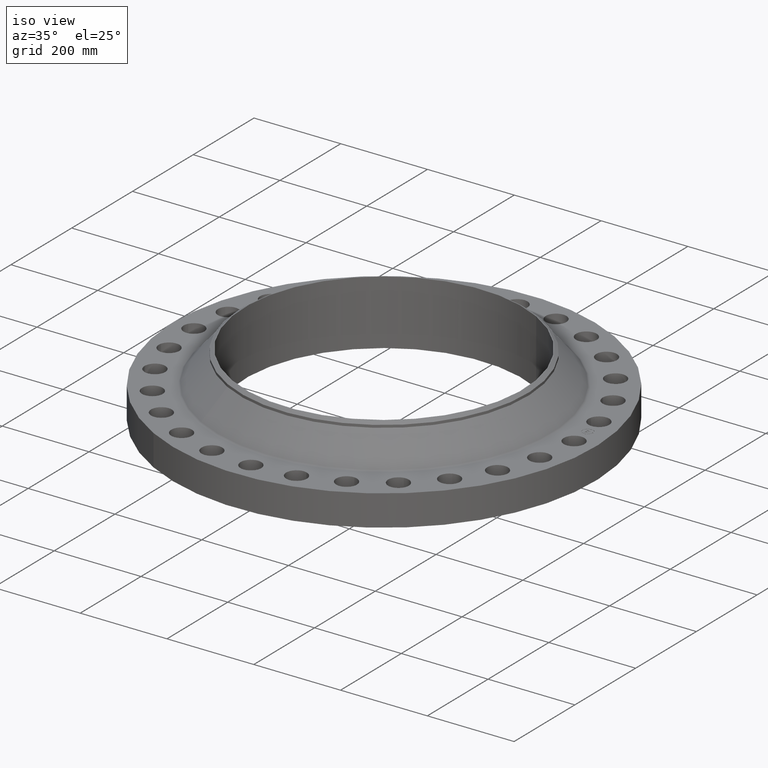
[diagram: clean part render]
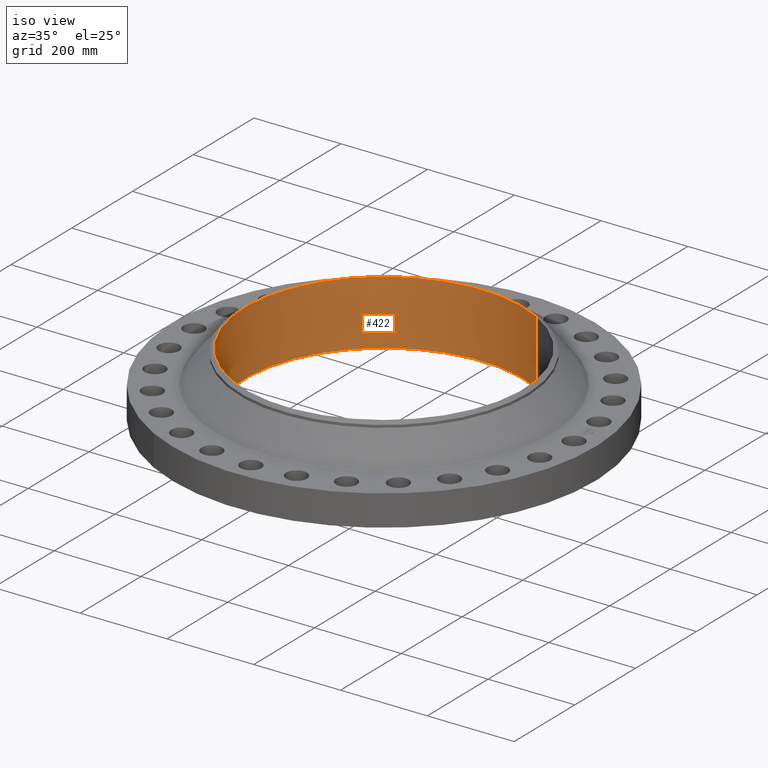
[diagram: same view with one face highlighted and labeled with its STEP entity id]
A machine part, iso view. The second image highlights one B-rep face of the part: STEP entity #422.
In plain terms, the highlighted cylindrical surface (partial cylindrical patch) has radius 320.675 mm, axis along (0, 0, -1).
Its self-contained STEP definition (entity closure, byte-faithful):
#361=CARTESIAN_POINT('Axis2P3D Location',(-2.84217094304E-014,2.13162820728E-014,147.574000001)) ;
#365=CARTESIAN_POINT('Vertex',(-153.739784593,-281.418788035,147.574000001)) ;
#367=CARTESIAN_POINT('Vertex',(153.739784593,281.418788035,147.574000001)) ;
#380=CARTESIAN_POINT('Axis2P3D Location',(0.,0.,74.2632500003)) ;
#385=CARTESIAN_POINT('Line Origine',(153.739784593,281.418788035,74.2632500003)) ;
#389=CARTESIAN_POINT('Vertex',(153.739784593,281.418788035,-1.58750000001)) ;
#396=CARTESIAN_POINT('Vertex',(-153.739784593,-281.418788035,-1.58750000001)) ;
#399=CARTESIAN_POINT('Line Origine',(-153.739784593,-281.418788035,74.2632500003)) ;
#411=CARTESIAN_POINT('Axis2P3D Location',(0.,0.,-1.58750000001)) ;
#362=DIRECTION('Axis2P3D Direction',(0.,-0.,-1.)) ;
#381=DIRECTION('Axis2P3D Direction',(0.,0.,-1.)) ;
#382=DIRECTION('Axis2P3D XDirection',(0.479425538604,0.87758256189,0.)) ;
#386=DIRECTION('Vector Direction',(0.,0.,-1.)) ;
#400=DIRECTION('Vector Direction',(0.,0.,-1.)) ;
#412=DIRECTION('Axis2P3D Direction',(0.,0.,-1.)) ;
#363=AXIS2_PLACEMENT_3D('Circle Axis2P3D',#361,#362,$) ;
#383=AXIS2_PLACEMENT_3D('Cylinder Axis2P3D',#380,#381,#382) ;
#413=AXIS2_PLACEMENT_3D('Circle Axis2P3D',#411,#412,$) ;
#417=ORIENTED_EDGE('',*,*,#403,.T.) ;
#418=ORIENTED_EDGE('',*,*,#415,.T.) ;
#419=ORIENTED_EDGE('',*,*,#391,.F.) ;
#420=ORIENTED_EDGE('',*,*,#369,.F.) ;
#387=VECTOR('Line Direction',#386,1.) ;
#401=VECTOR('Line Direction',#400,1.) ;
#422=ADVANCED_FACE('PartBody',(#421),#384,.F.) ;
#364=CIRCLE('generated circle',#363,320.675000001) ;
#414=CIRCLE('generated circle',#413,320.675000001) ;
#384=CYLINDRICAL_SURFACE('generated cylinder',#383,320.675000001) ;
#369=EDGE_CURVE('',#366,#368,#364,.T.) ;
#391=EDGE_CURVE('',#368,#390,#388,.T.) ;
#403=EDGE_CURVE('',#366,#397,#402,.T.) ;
#415=EDGE_CURVE('',#397,#390,#414,.T.) ;
#416=EDGE_LOOP('',(#417,#418,#419,#420)) ;
#421=FACE_OUTER_BOUND('',#416,.T.) ;
#388=LINE('Line',#385,#387) ;
#402=LINE('Line',#399,#401) ;
#366=VERTEX_POINT('',#365) ;
#368=VERTEX_POINT('',#367) ;
#390=VERTEX_POINT('',#389) ;
#397=VERTEX_POINT('',#396) ;